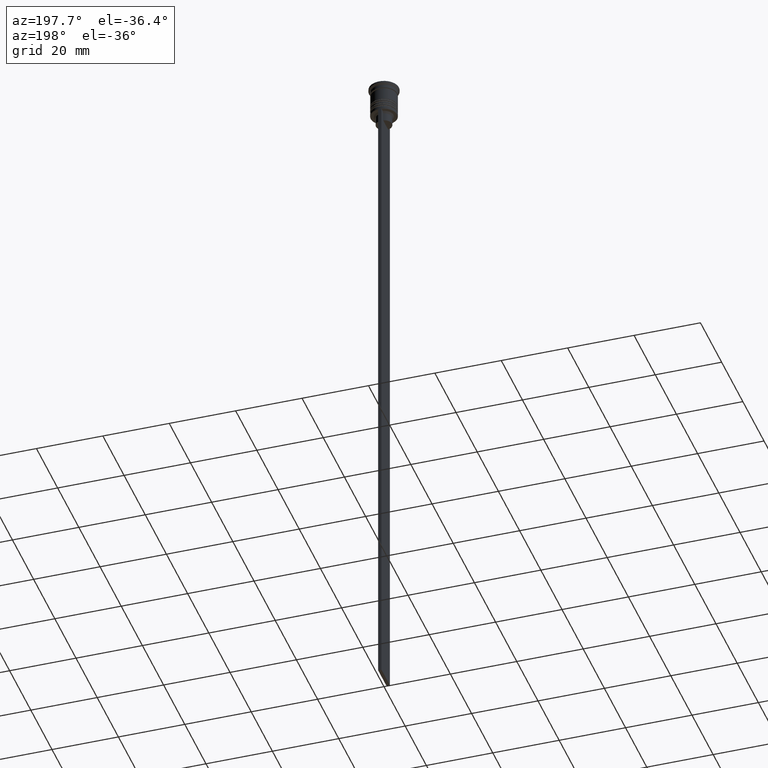
[diagram: clean part render]
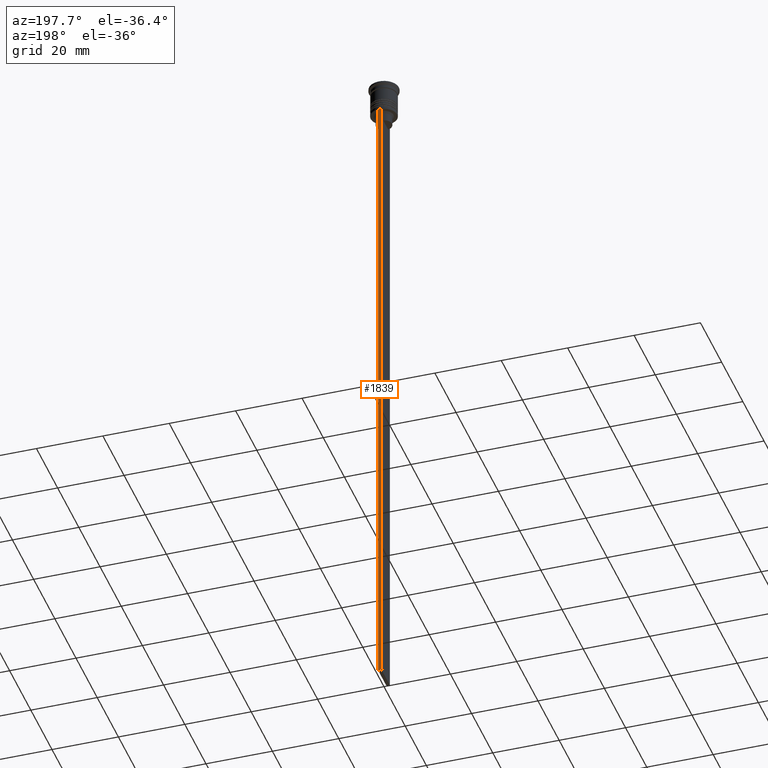
[diagram: same view with one face highlighted and labeled with its STEP entity id]
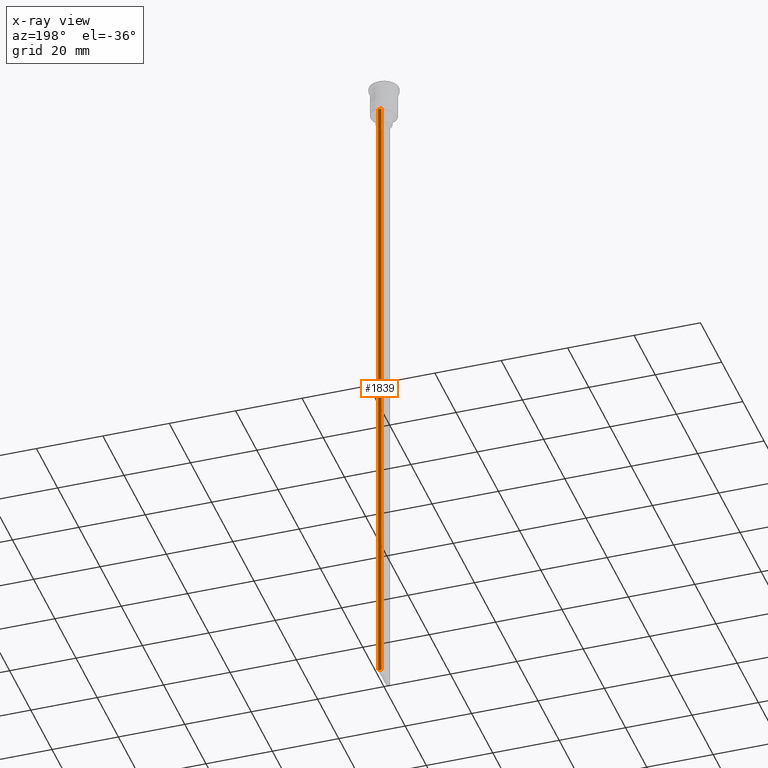
[diagram: x-ray of the same camera — body ghosted, the highlighted face saturated]
A machine part, auxiliary view. The second image highlights one B-rep face of the part: STEP entity #1839.
The next image is the same camera in x-ray: the body ghosted, the highlighted face saturated — about 0% of this face is hidden behind the body in this view.
In plain terms, the highlighted planar face has unit normal (0, -1, -0).
Its self-contained STEP definition (entity closure, byte-faithful):
#133 = VERTEX_POINT ( 'NONE', #1122 ) ;
#135 = PLANE ( 'NONE',  #2058 ) ;
#167 = DIRECTION ( 'NONE',  ( 0.000000000000000000, 0.000000000000000000, -1.000000000000000000 ) ) ;
#299 = ORIENTED_EDGE ( 'NONE', *, *, #2447, .T. ) ;
#312 = DIRECTION ( 'NONE',  ( 0.000000000000000000, -1.000000000000000000, -0.000000000000000000 ) ) ;
#313 = LINE ( 'NONE', #1271, #1166 ) ;
#341 = DIRECTION ( 'NONE',  ( 0.000000000000000000, 0.000000000000000000, -1.000000000000000000 ) ) ;
#385 = EDGE_CURVE ( 'NONE', #133, #1061, #1079, .T. ) ;
#435 = VECTOR ( 'NONE', #341, 1000.000000000000000 ) ;
#504 = DIRECTION ( 'NONE',  ( 0.000000000000000000, 0.000000000000000000, -1.000000000000000000 ) ) ;
#524 = CARTESIAN_POINT ( 'NONE',  ( -0.5000000000000000000, 4.000000000000000000, -1.437742251701450202 ) ) ;
#682 = DIRECTION ( 'NONE',  ( -1.000000000000000000, 0.000000000000000000, 0.000000000000000000 ) ) ;
#818 = EDGE_LOOP ( 'NONE', ( #2445, #299, #2023, #1077 ) ) ;
#1061 = VERTEX_POINT ( 'NONE', #2370 ) ;
#1077 = ORIENTED_EDGE ( 'NONE', *, *, #385, .T. ) ;
#1079 = LINE ( 'NONE', #1663, #1521 ) ;
#1092 = DIRECTION ( 'NONE',  ( 1.000000000000000000, 0.000000000000000000, 0.000000000000000000 ) ) ;
#1122 = CARTESIAN_POINT ( 'NONE',  ( 0.5000000000000000000, 4.000000000000000000, -209.5000000000000284 ) ) ;
#1166 = VECTOR ( 'NONE', #1092, 1000.000000000000000 ) ;
#1271 = CARTESIAN_POINT ( 'NONE',  ( 0.5000000000000000000, 4.000000000000000000, -9.500000000000000000 ) ) ;
#1308 = CARTESIAN_POINT ( 'NONE',  ( 0.5000000000000000000, 4.000000000000000000, -1.437742251701450202 ) ) ;
#1472 = FACE_OUTER_BOUND ( 'NONE', #818, .T. ) ;
#1514 = CARTESIAN_POINT ( 'NONE',  ( 0.5000000000000000000, 4.000000000000000000, -1.437742251701450202 ) ) ;
#1519 = LINE ( 'NONE', #524, #1535 ) ;
#1521 = VECTOR ( 'NONE', #682, 1000.000000000000000 ) ;
#1535 = VECTOR ( 'NONE', #167, 1000.000000000000000 ) ;
#1663 = CARTESIAN_POINT ( 'NONE',  ( 0.5000000000000000000, 4.000000000000000000, -209.5000000000000284 ) ) ;
#1703 = VERTEX_POINT ( 'NONE', #1841 ) ;
#1719 = CARTESIAN_POINT ( 'NONE',  ( -0.5000000000000000000, 4.000000000000000000, -9.500000000000000000 ) ) ;
#1839 = ADVANCED_FACE ( 'NONE', ( #1472 ), #135, .F. ) ;
#1841 = CARTESIAN_POINT ( 'NONE',  ( 0.5000000000000000000, 4.000000000000000000, -9.500000000000000000 ) ) ;
#1870 = LINE ( 'NONE', #1308, #435 ) ;
#2021 = EDGE_CURVE ( 'NONE', #2407, #1061, #1519, .T. ) ;
#2023 = ORIENTED_EDGE ( 'NONE', *, *, #2409, .T. ) ;
#2058 = AXIS2_PLACEMENT_3D ( 'NONE', #1514, #312, #504 ) ;
#2370 = CARTESIAN_POINT ( 'NONE',  ( -0.5000000000000000000, 4.000000000000000000, -209.5000000000000284 ) ) ;
#2407 = VERTEX_POINT ( 'NONE', #1719 ) ;
#2409 = EDGE_CURVE ( 'NONE', #1703, #133, #1870, .T. ) ;
#2445 = ORIENTED_EDGE ( 'NONE', *, *, #2021, .F. ) ;
#2447 = EDGE_CURVE ( 'NONE', #2407, #1703, #313, .T. ) ;